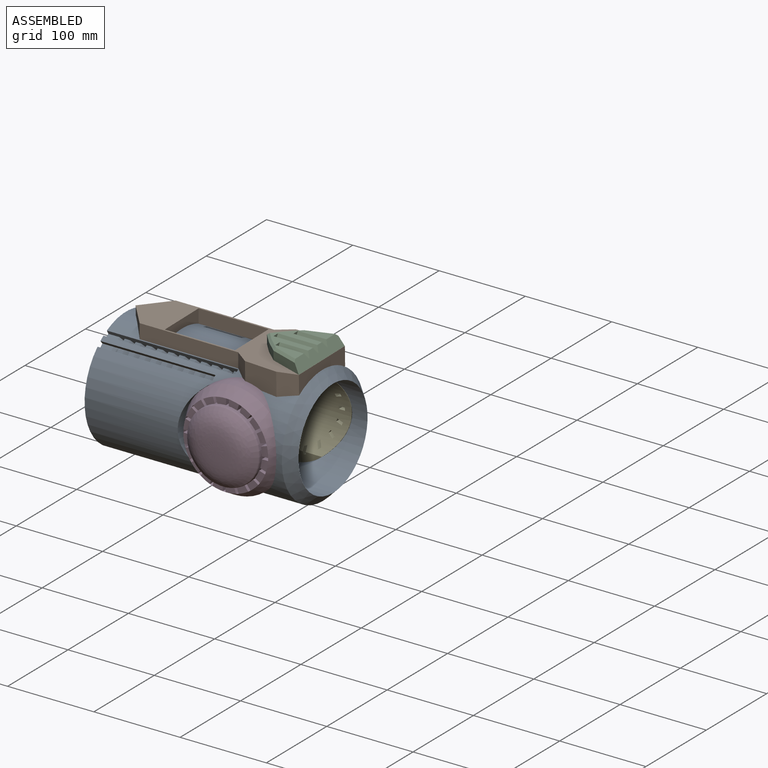
[diagram: assembled view]
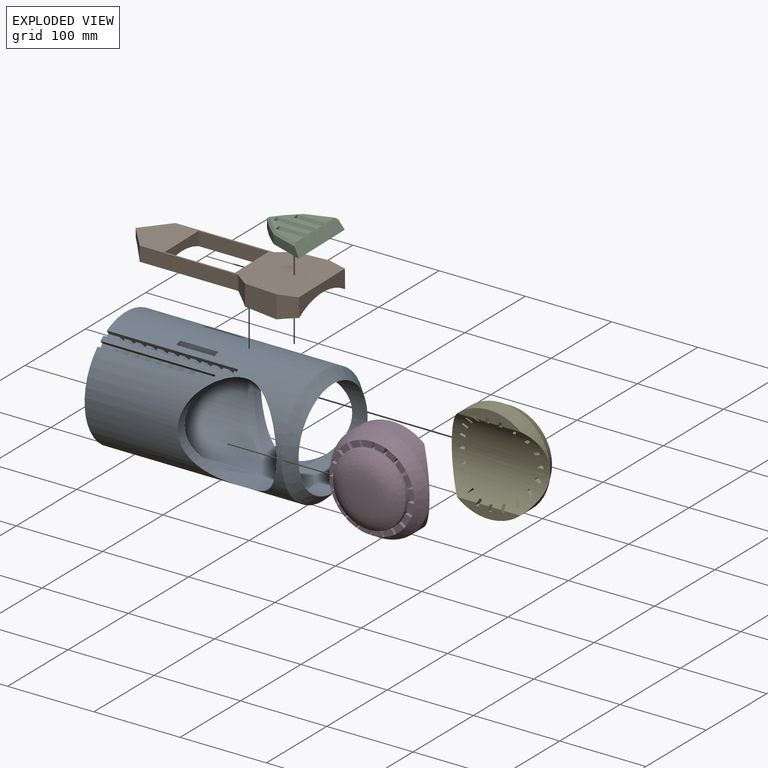
[diagram: exploded view]
GUIDED TOUR — MATED ASSEMBLY (Onshape document 820ff9f34ef822ad27cfb1ab, AutoMate assembly 820ff9f34ef822ad27cfb1ab_28095be229527e24cbf6e456_fba93439d21030f78f84b87d_default)

This assembly has 5 components, labeled P0..P4 below (a component is one placed occurrence of a part; the same part can appear more than once), held together by 4 mates. A mate is a constraint between two components; its type names the relative motion it leaves free:
  CYLINDRICAL — leaves both rotation about and translation along the listed axis free,
  PARALLEL — keeps the two listed directions parallel.
Axis/direction vectors are unit vectors and 'through' points are millimeter coordinates, both in the assembly's world frame.

MATES
  1. CYLINDRICAL "Cylindrical 1": P1 <-> P0, axis (1.000, 0.000, 0.000) through (3.45, 4.41, -8.81) mm
  2. PARALLEL "Parallel 1": P2 <-> P1, direction (0.000, 0.015, -1.000) through (87.88, 3.04, 70.06) mm
  3. CYLINDRICAL "Cylindrical 2": P3 <-> P0, axis (1.000, 0.000, 0.000) through (107.47, 4.41, -8.81) mm
  4. CYLINDRICAL "Cylindrical 3": P4 <-> P0, axis (1.000, 0.000, 0.000) through (48.79, 4.41, -8.81) mm

ASSEMBLY ORDER
  1. P0 — the base component [order heuristic]
  2. P3 — core [order heuristic]
  3. P4 — core [order heuristic]
  4. P1 [order verified]
  5. P2 [order verified]
(P1 verified with a relaxed clearance tolerance: the source model stores slight part interference there.)
Order-tag legend:
  [order verified] — this step's position reverses a verified removal order: the component was checked to insert without passing through the ones already placed.
  [order heuristic] — the first 3 components form the assembly's core: parts whose collision-free extraction could not be verified, listed in mate-graph order.

Of the 5 components, 2 carry the full construction recipe — the FeatureScript program that regenerates the part's solid from scratch; the rest are supplied as boundary geometry only.
Each toured component is shown spotlighted twice — in the assembled view, then in the exploded view, where a leader line traces a displaced component back to its assembled socket (saturated green if recipe-attached, orange if geometry-only; every other component desaturated gray) — followed by its recipe or geometry summary and the mates that hold it.
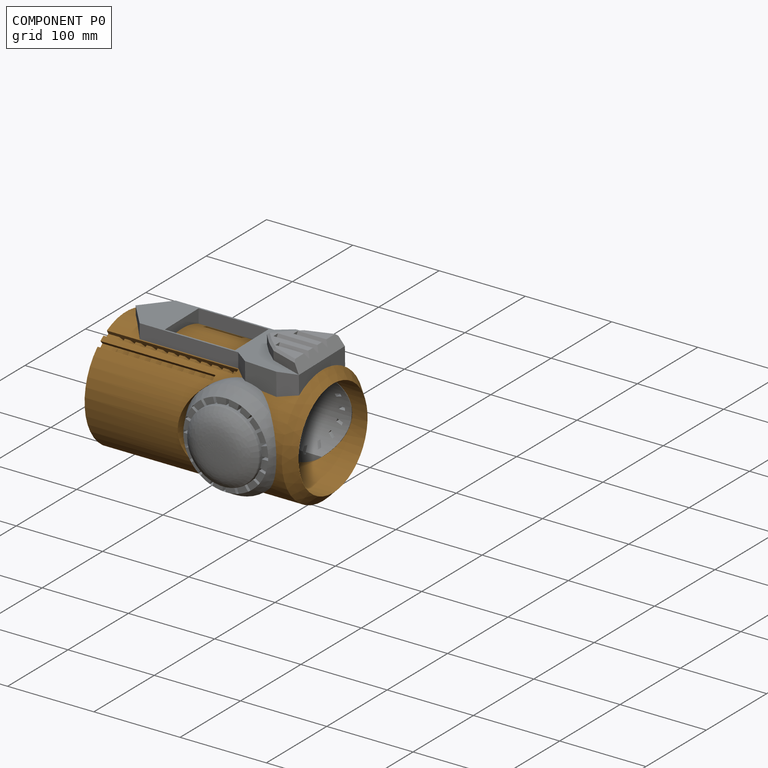
[diagram: component P0 — assembled]
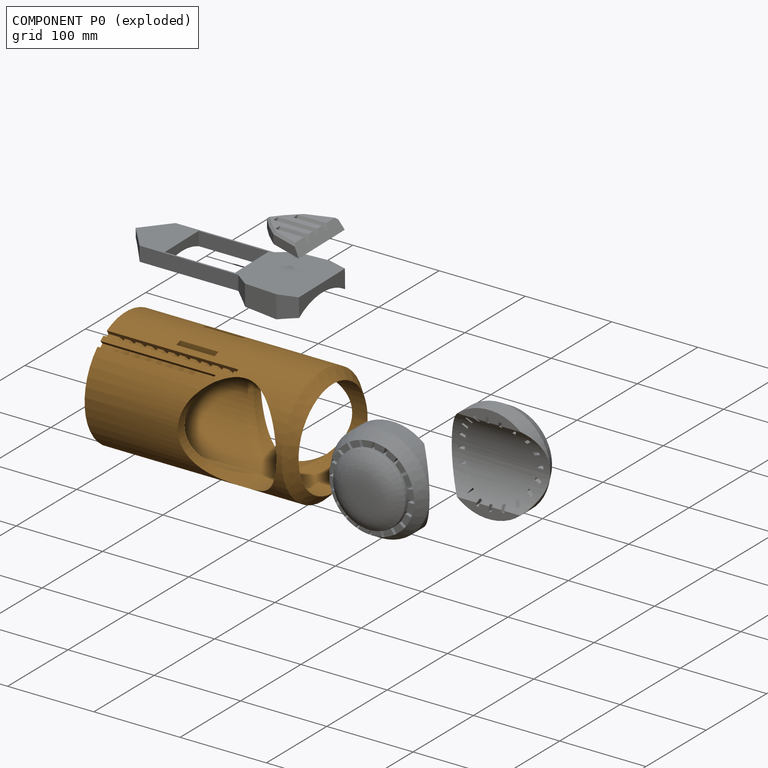
[diagram: component P0 — exploded]
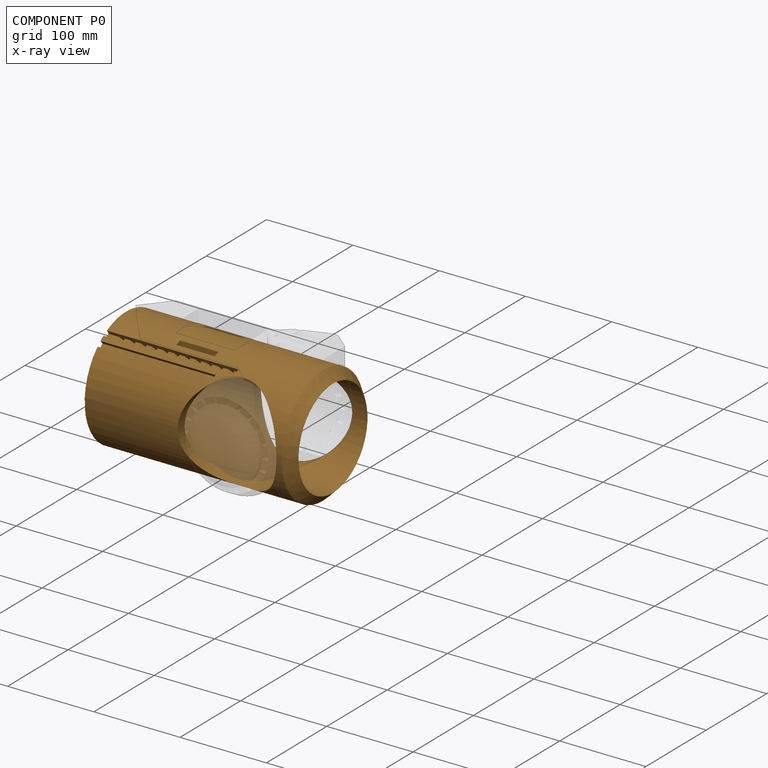
[diagram: component P0 — x-ray view]
COMPONENT P0 — geometry summary (no construction recipe available for this part):
  bounding box: 240.1 x 137.2 x 137.2 mm
  B-rep topology: 1 solid, 139 faces, 1058 edges
  volume: 742897 mm^3 (16% of its bounding box)
  symmetry: mirror-symmetric across its y mid-plane
Held by: CYLINDRICAL mate "Cylindrical 1" to P1; CYLINDRICAL mate "Cylindrical 2" to P3; CYLINDRICAL mate "Cylindrical 3" to P4.
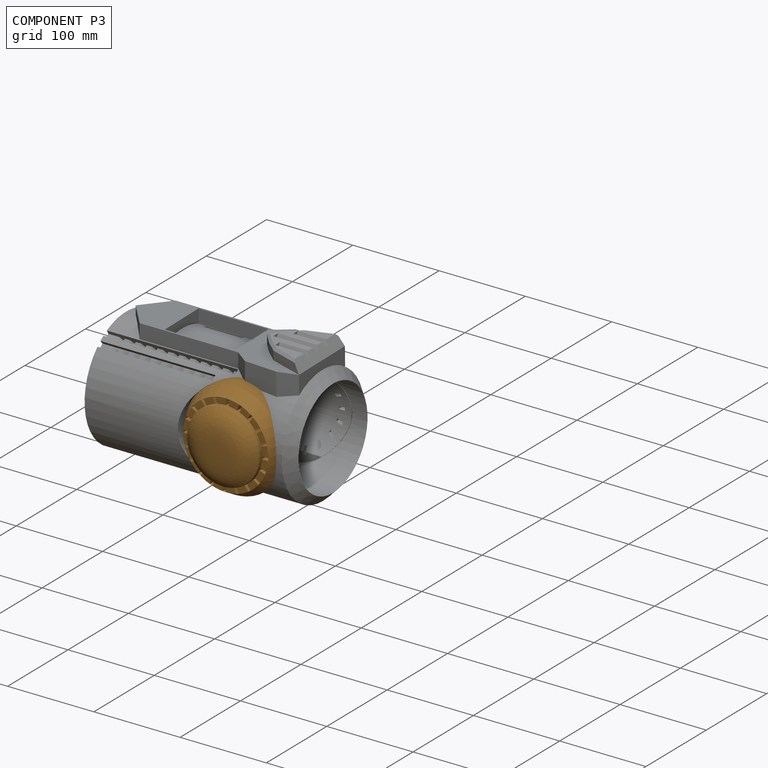
[diagram: component P3 — assembled]
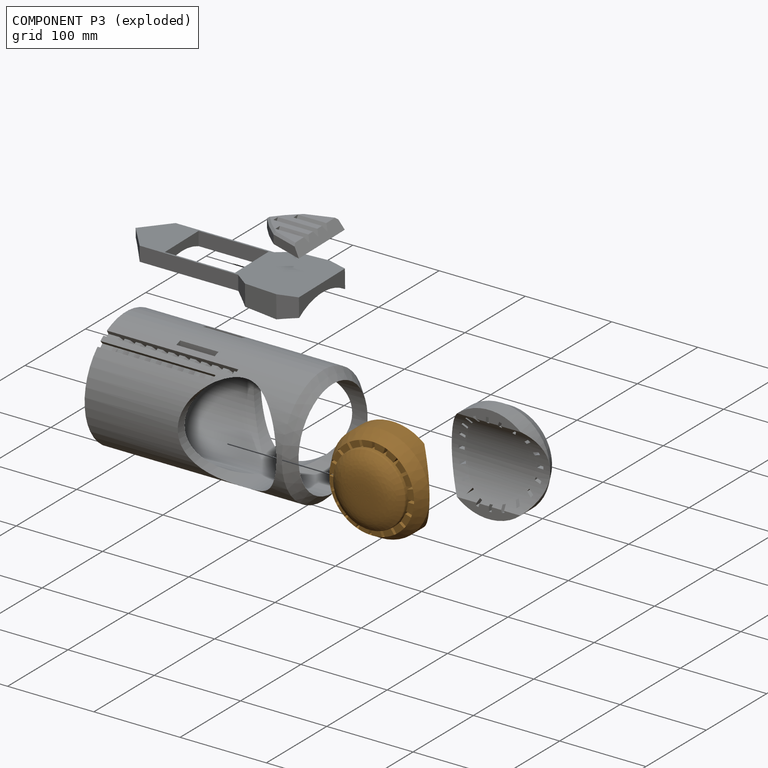
[diagram: component P3 — exploded]
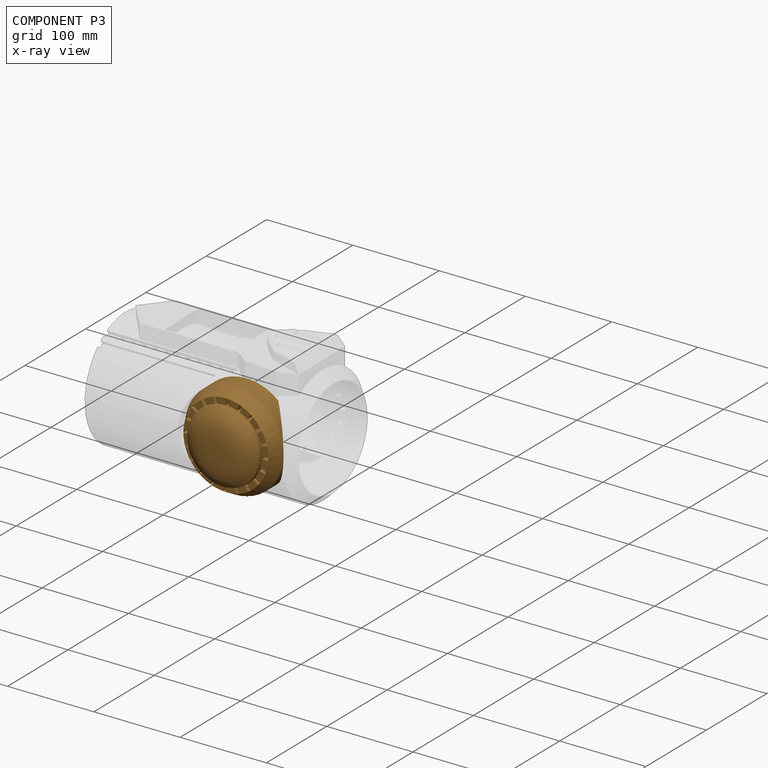
[diagram: component P3 — x-ray view]
COMPONENT P3 — geometry summary (no construction recipe available for this part):
  bounding box: 114.3 x 114.3 x 51.3 mm
  B-rep topology: 1 solid, 89 faces, 595 edges
  volume: 259252 mm^3 (39% of its bounding box)
  symmetry: 2-fold rotationally symmetric about the y axis
Held by: CYLINDRICAL mate "Cylindrical 2" to P0.
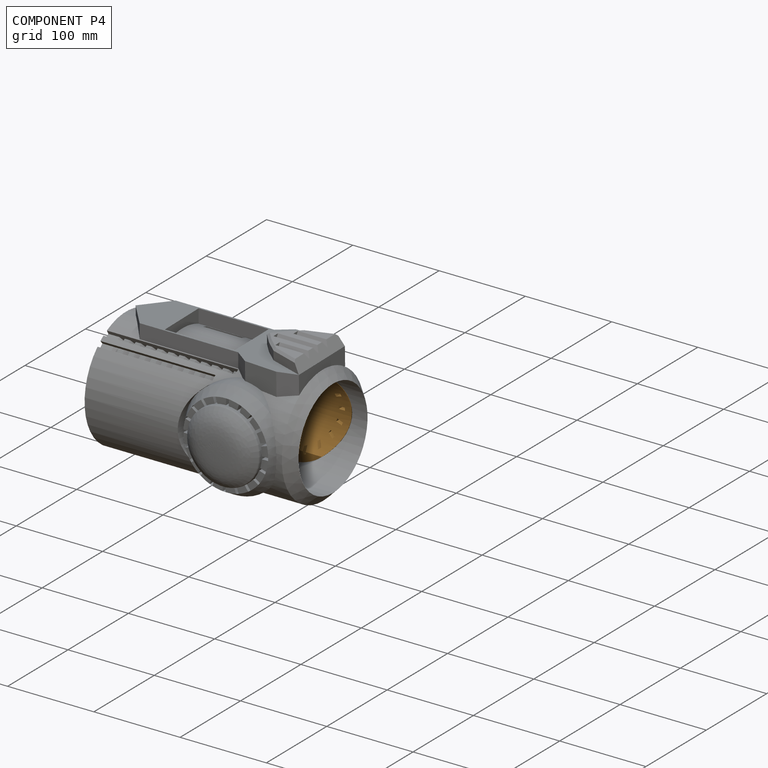
[diagram: component P4 — assembled]
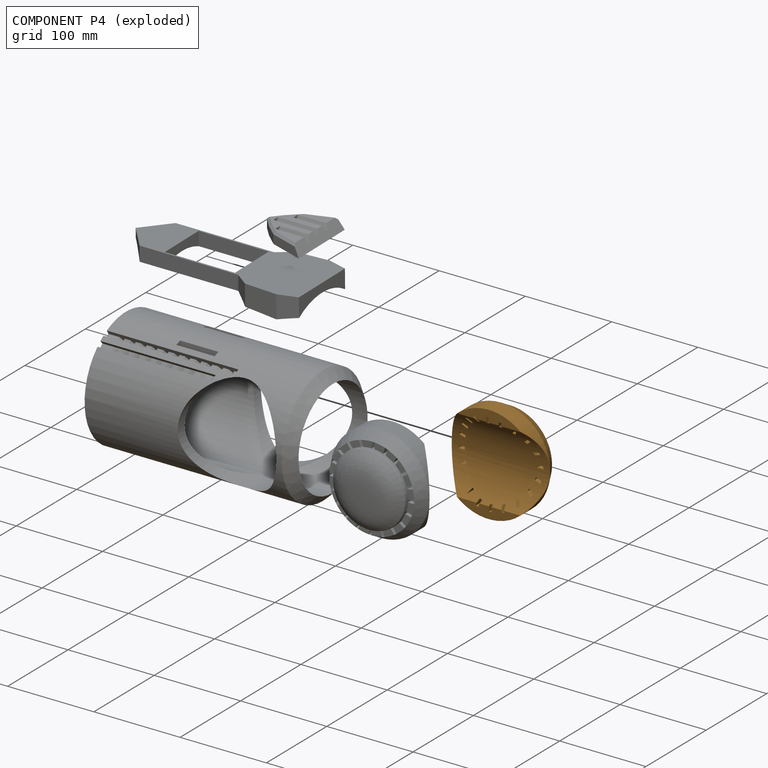
[diagram: component P4 — exploded]
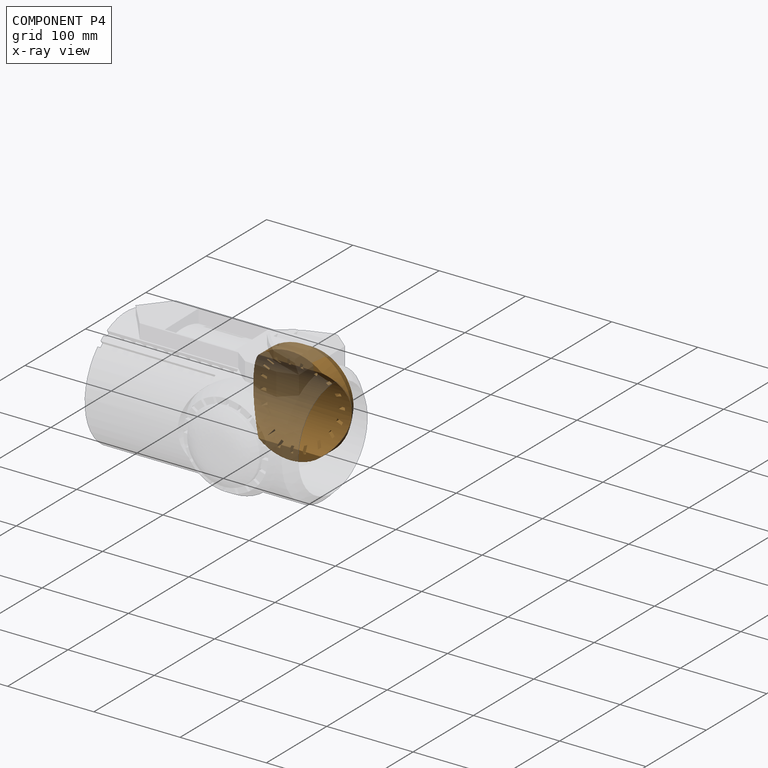
[diagram: component P4 — x-ray view]
COMPONENT P4 — geometry summary (no construction recipe available for this part):
  bounding box: 114.3 x 114.3 x 51.3 mm
  B-rep topology: 1 solid, 89 faces, 595 edges
  volume: 259252 mm^3 (39% of its bounding box)
  symmetry: 2-fold rotationally symmetric about the y axis
Held by: CYLINDRICAL mate "Cylindrical 3" to P0.
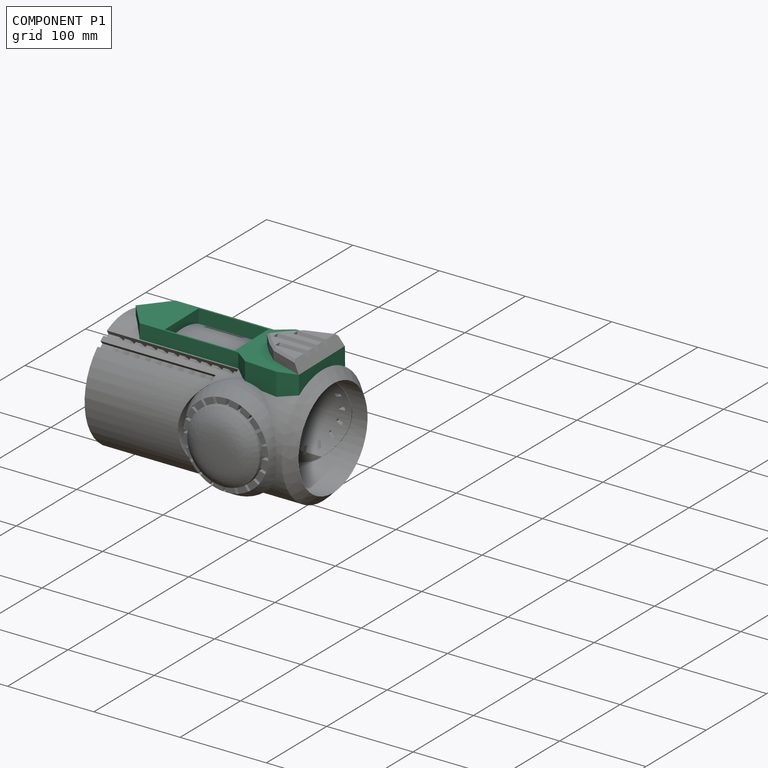
[diagram: component P1 — assembled]
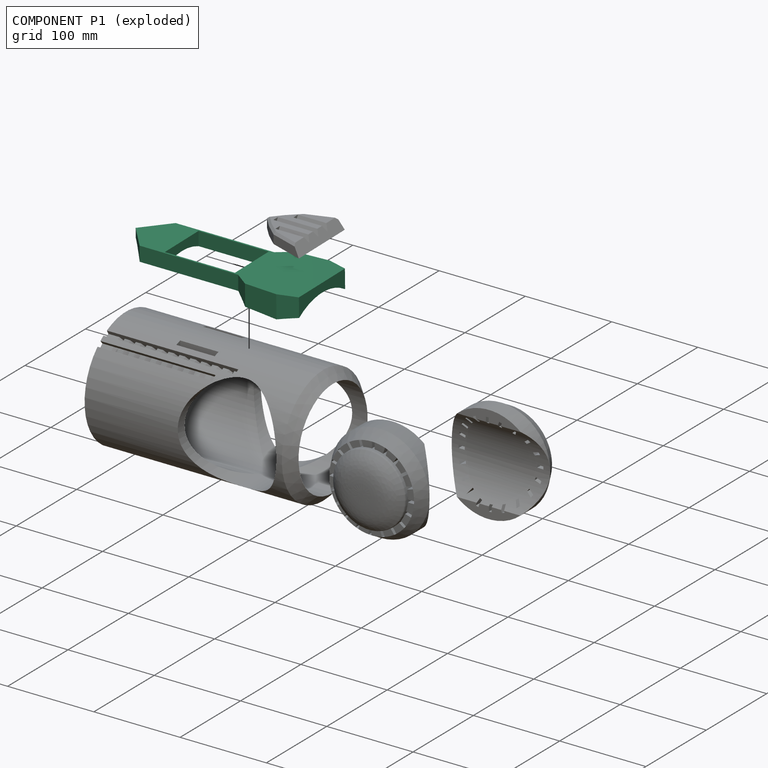
[diagram: component P1 — exploded]
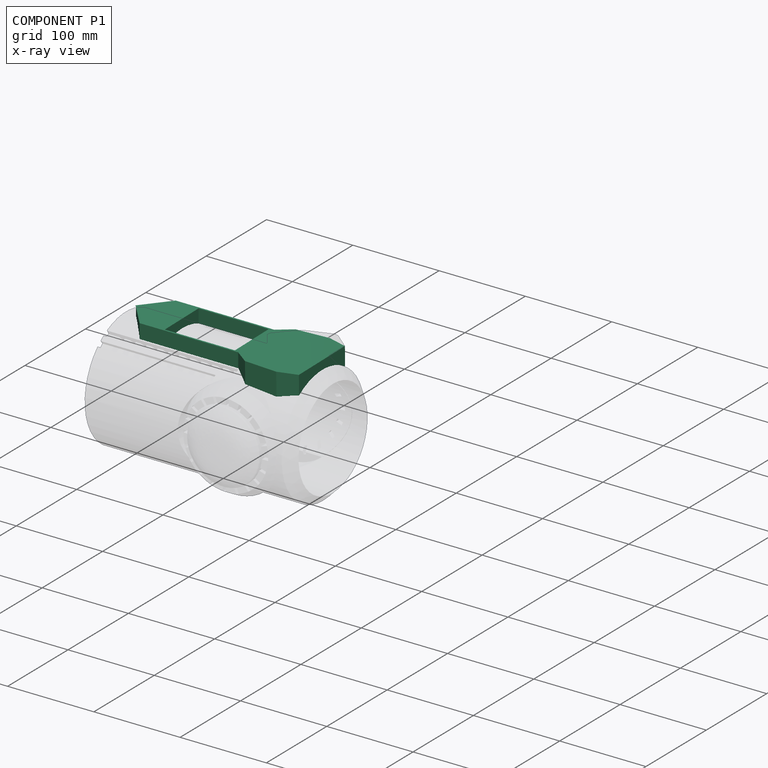
[diagram: component P1 — x-ray view]
COMPONENT P1 — recipe-attached (CADFS 00790599, mesh-verified: the recipe's output STEP matches this component's geometry to below the mesh-comparison resolution (tessellation chordal tolerance ~0.352 mm)).
Held by: CYLINDRICAL mate "Cylindrical 1" to P0; PARALLEL mate "Parallel 1" to P2.
Construction recipe (FeatureScript — the CAD program that rebuilds this solid; sketch coordinates are in the units given by the * unit suffixes, e.g. mm):

FeatureScript 1511;
import(path : "onshape/std/geometry.fs", version : "1511.0");
import(path : "onshape/std/common.fs", version : "1511.0");
const mm = millimeter;
const VERTEX = EntityType.VERTEX;
const EDGE = EntityType.EDGE;
const FACE = EntityType.FACE;
const BODY = EntityType.BODY;
function v(x, y){return vector(x, y);}
function OD(order){return orderDisambiguation(order);}
function OSD(set){return originalSetDisambiguation(set);}
function TD(topology){return topologyDisambiguation(topology);}
function TDD(query){return trueDependencyDisambiguation(query);}
function sQuery(a, b, c) {return sketchEntityQuery(a, b, c);}

annotation { "Feature Type Name" : "Feature", "Feature Type Description" : "" }
export const myFeature = defineFeature(function(context is Context, id is Id, definition is map)
    precondition{}
    {
        {
            var Q0;
            Q0=qCreatedBy(makeId("Top.planeOp"),FACE);
            var sketch = newSketch(context, id + "F0", { "sketchPlane" : qUnion([Q0])});
            skLineSegment(sketch, "E0", {"start": v(0, 38.1) * mm, "end": v(0, -38.1) * mm});
            skLineSegment(sketch, "E1", {"start": v(0, -38.1) * mm, "end": v(-21.83, -44.45) * mm});
            skLineSegment(sketch, "E2", {"start": v(-21.83, -44.45) * mm, "end": v(-59.85, -41.91) * mm});
            skLineSegment(sketch, "E3", {"start": v(-59.85, -41.91) * mm, "end": v(-76.2, -29.84) * mm});
            skLineSegment(sketch, "E4", {"start": v(-76.2, -29.85) * mm, "end": v(-190.5, -29.85) * mm});
            skLineSegment(sketch, "E5", {"start": v(-190.5, -29.85) * mm, "end": v(-215.9, 0) * mm});
            skLineSegment(sketch, "E6", {"start": v(-215.9, 0) * mm, "end": v(-190.5, 29.84) * mm});
            skLineSegment(sketch, "E7", {"start": v(-190.5, 29.85) * mm, "end": v(-76.2, 29.85) * mm});
            skLineSegment(sketch, "E8", {"start": v(-76.2, 29.84) * mm, "end": v(-59.85, 41.9) * mm});
            skLineSegment(sketch, "E9", {"start": v(-59.85, 41.91) * mm, "end": v(-21.83, 44.45) * mm});
            skLineSegment(sketch, "E10", {"start": v(-21.83, 44.45) * mm, "end": v(0, 38.1) * mm});
            skLineSegment(sketch, "E11", {"start": v(0, 0) * mm, "end": v(-76.2, 0) * mm});
            skLineSegment(sketch, "E12", {"start": v(-76.2, 29.85) * mm, "end": v(-76.2, -29.85) * mm});
            skSolve(sketch);
        }
        {
            var Q0;
            Q0 = qSketchRegion(id + "F0", true);
            extrude(context, id + "F1", {"entities" : qUnion([Q0]), "depth" : 78.74 * mm, "offsetDistance" : 25.4 * mm});
        }
        {
            var Q0;
            Q0=makeQuery(id+"F1.opExtrude","SWEPT_FACE",FACE,{"disambiguationData":[OSD([sQuery(id+"F0.wireOp",EDGE,"E0")])]});
            var sketch = newSketch(context, id + "F2", { "sketchPlane" : qUnion([Q0])});
            skCircle(sketch, "E13", {"center": v(0, 0) * mm, "radius": 68.58 * mm});
            skSolve(sketch);
        }
        {
            var Q0;
            Q0 = qSketchRegion(id + "F2", true);
            extrude(context, id + "F3", {"entities" : qUnion([Q0]), "operationType" : NewBodyOperationType.REMOVE, "oppositeDirection" : true, "depth" : 228.6 * mm, "offsetDistance" : 25.4 * mm});
        }
        {
            var Q0;
            Q0=makeQuery(id+"F1.opExtrude","CAP_FACE",FACE,{"disambiguationData":[OSD([sQuery(id+"F0.wireOp",EDGE,"E0"),sQuery(id+"F0.wireOp",EDGE,"E1"),sQuery(id+"F0.wireOp",EDGE,"E2"),sQuery(id+"F0.wireOp",EDGE,"E3"),sQuery(id+"F0.wireOp",EDGE,"E4"),sQuery(id+"F0.wireOp",EDGE,"E5"),sQuery(id+"F0.wireOp",EDGE,"E6"),sQuery(id+"F0.wireOp",EDGE,"E7"),sQuery(id+"F0.wireOp",EDGE,"E8"),sQuery(id+"F0.wireOp",EDGE,"E9"),sQuery(id+"F0.wireOp",EDGE,"E10")])],"isStart":false});
            var sketch = newSketch(context, id + "F4", { "sketchPlane" : qUnion([Q0])});
            skLineSegment(sketch, "E14.bottom", {"start": v(-162.56, 27.94) * mm, "end": v(-81.28, 27.94) * mm});
            skLineSegment(sketch, "E14.top", {"start": v(-162.56, -27.94) * mm, "end": v(-81.28, -27.94) * mm});
            skLineSegment(sketch, "E14.left", {"start": v(-162.56, 27.94) * mm, "end": v(-162.56, -27.94) * mm});
            skLineSegment(sketch, "E14.right", {"start": v(-81.28, 27.94) * mm, "end": v(-81.28, -27.94) * mm});
            skSolve(sketch);
        }
        {
            var Q0;
            Q0=makeQuery(id+"F4.imprint","IMPRINT",FACE,{"disambiguationData":[TD([[makeQuery(id+"F4.imprint","IMPRINT",EDGE,{"derivedFrom":sQuery(id+"F4.wireOp",EDGE,"E14.bottom")}),-1.0]])]});
            extrude(context, id + "F5", {"entities" : qUnion([Q0]), "operationType" : NewBodyOperationType.REMOVE, "oppositeDirection" : true, "depth" : 25.4 * mm, "offsetDistance" : 25.4 * mm});
        }
    });
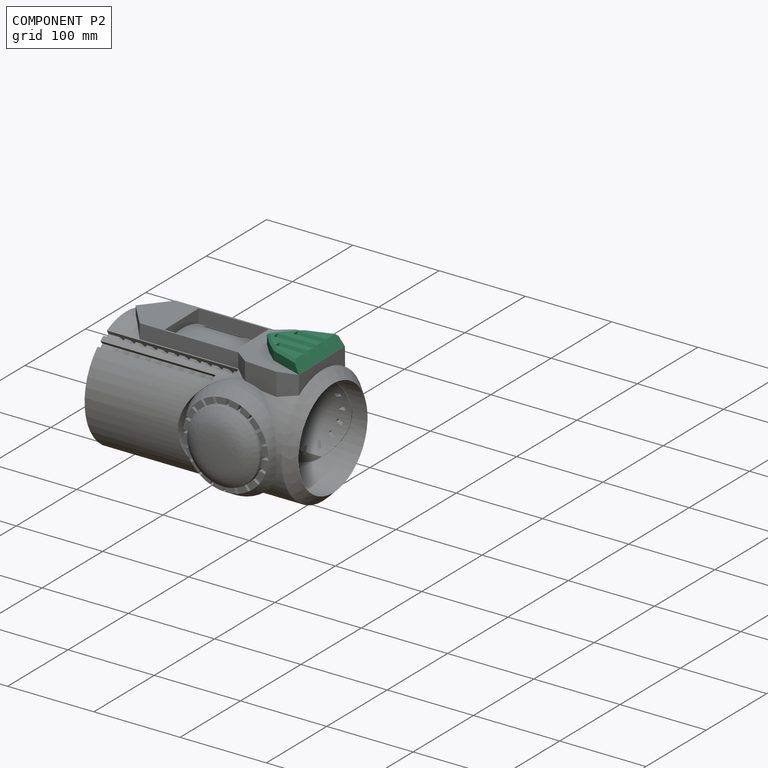
[diagram: component P2 — assembled]
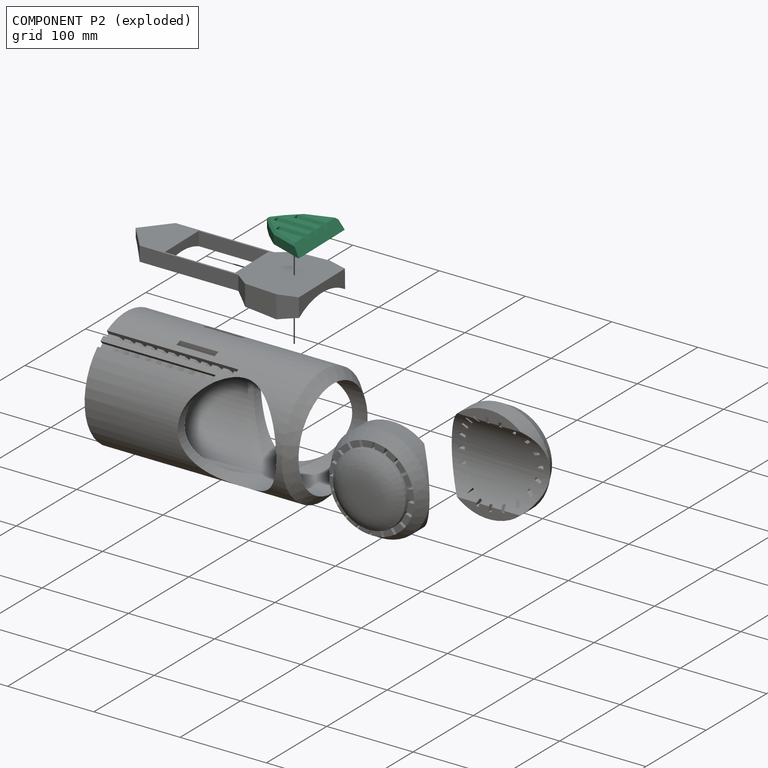
[diagram: component P2 — exploded]
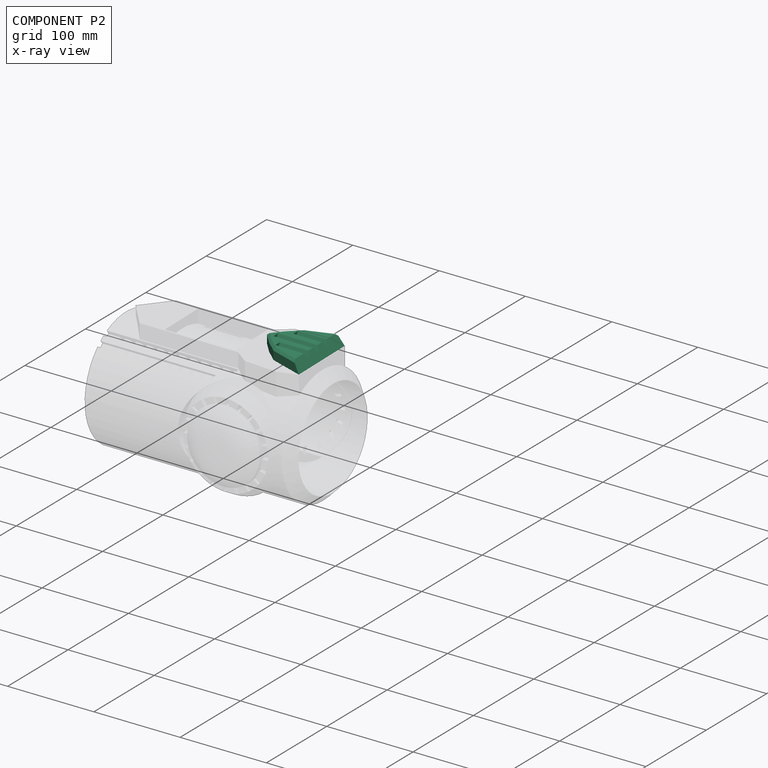
[diagram: component P2 — x-ray view]
COMPONENT P2 — recipe-attached (CADFS 00790600, mesh-verified: the recipe's output STEP matches this component's geometry to below the mesh-comparison resolution (tessellation chordal tolerance ~0.15 mm)).
Held by: PARALLEL mate "Parallel 1" to P1.
Construction recipe (FeatureScript — the CAD program that rebuilds this solid; sketch coordinates are in the units given by the * unit suffixes, e.g. mm):

FeatureScript 1511;
import(path : "onshape/std/geometry.fs", version : "1511.0");
import(path : "onshape/std/common.fs", version : "1511.0");
const mm = millimeter;
const VERTEX = EntityType.VERTEX;
const EDGE = EntityType.EDGE;
const FACE = EntityType.FACE;
const BODY = EntityType.BODY;
function v(x, y){return vector(x, y);}
function OD(order){return orderDisambiguation(order);}
function OSD(set){return originalSetDisambiguation(set);}
function TD(topology){return topologyDisambiguation(topology);}
function TDD(query){return trueDependencyDisambiguation(query);}
function sQuery(a, b, c) {return sketchEntityQuery(a, b, c);}

annotation { "Feature Type Name" : "Feature", "Feature Type Description" : "" }
export const myFeature = defineFeature(function(context is Context, id is Id, definition is map)
    precondition{}
    {
        {
            var Q0;
            Q0=qCreatedBy(makeId("Top.planeOp"),FACE);
            var sketch = newSketch(context, id + "F0", { "sketchPlane" : qUnion([Q0])});
            skLineSegment(sketch, "E0", {"start": v(0, 38.1) * mm, "end": v(-38.1, 25.4) * mm});
            skLineSegment(sketch, "E1", {"start": v(-38.1, 25.4) * mm, "end": v(-52.27, 12.7) * mm});
            skLineSegment(sketch, "E2", {"start": v(-52.27, 12.7) * mm, "end": v(-63.5, 0) * mm});
            skLineSegment(sketch, "E3", {"start": v(-63.5, 0) * mm, "end": v(-52.27, -12.7) * mm});
            skLineSegment(sketch, "E4", {"start": v(-52.27, -12.7) * mm, "end": v(-38.1, -25.4) * mm});
            skLineSegment(sketch, "E5", {"start": v(-38.1, -25.4) * mm, "end": v(0, -38.1) * mm});
            skLineSegment(sketch, "E6", {"start": v(0, -38.1) * mm, "end": v(0, 38.1) * mm});
            skSolve(sketch);
        }
        {
            var Q0;
            Q0=makeQuery(id+"F0.imprint","IMPRINT",FACE,{"disambiguationData":[TD([[makeQuery(id+"F0.imprint","IMPRINT",EDGE,{"derivedFrom":sQuery(id+"F0.wireOp",EDGE,"E0")}),1.0]])]});
            extrude(context, id + "F1", {"entities" : qUnion([Q0]), "depth" : 12.7 * mm, "offsetDistance" : 25.4 * mm});
        }
        {
            var Q0;
            Q0=makeQuery(id+"F1.opExtrude","SWEPT_FACE",FACE,{"disambiguationData":[OSD([sQuery(id+"F0.wireOp",EDGE,"E6")])]});
            var sketch = newSketch(context, id + "F2", { "sketchPlane" : qUnion([Q0])});
            skLineSegment(sketch, "E7", {"start": v(-3.67, 12.7) * mm, "end": v(0, 6.35) * mm});
            skLineSegment(sketch, "E8", {"start": v(0, 6.35) * mm, "end": v(3.67, 12.7) * mm});
            skLineSegment(sketch, "E9", {"start": v(3.67, 12.7) * mm, "end": v(-3.67, 12.7) * mm});
            skLineSegment(sketch, "E10", {"start": v(11.29, 12.7) * mm, "end": v(14.95, 6.35) * mm});
            skLineSegment(sketch, "E11", {"start": v(14.95, 6.35) * mm, "end": v(18.62, 12.7) * mm});
            skLineSegment(sketch, "E12", {"start": v(18.62, 12.7) * mm, "end": v(11.29, 12.7) * mm});
            skLineSegment(sketch, "E13", {"start": v(-11.29, 12.7) * mm, "end": v(-18.62, 12.7) * mm});
            skLineSegment(sketch, "E14", {"start": v(-18.62, 12.7) * mm, "end": v(-14.95, 6.35) * mm});
            skLineSegment(sketch, "E15", {"start": v(-14.95, 6.35) * mm, "end": v(-11.29, 12.7) * mm});
            skSolve(sketch);
        }
        {
            var Q0;
            Q0=makeQuery(id+"F2.imprint","IMPRINT",FACE,{"disambiguationData":[TD([[makeQuery(id+"F2.imprint","IMPRINT",EDGE,{"derivedFrom":sQuery(id+"F2.wireOp",EDGE,"E13")}),-1.0]])]});
            var Q1;
            Q1=makeQuery(id+"F2.imprint","IMPRINT",FACE,{"disambiguationData":[TD([[makeQuery(id+"F2.imprint","IMPRINT",EDGE,{"derivedFrom":sQuery(id+"F2.wireOp",EDGE,"E10")}),1.0]])]});
            extrude(context, id + "F3", {"entities" : qUnion([Q0, Q1]), "operationType" : NewBodyOperationType.REMOVE, "oppositeDirection" : true, "depth" : 40.64 * mm, "offsetDistance" : 25.4 * mm});
        }
        {
            var Q0;
            Q0=makeQuery(id+"F2.imprint","IMPRINT",FACE,{"disambiguationData":[TD([[makeQuery(id+"F2.imprint","IMPRINT",EDGE,{"derivedFrom":sQuery(id+"F2.wireOp",EDGE,"E7")}),1.0]])]});
            extrude(context, id + "F4", {"entities" : qUnion([Q0]), "operationType" : NewBodyOperationType.REMOVE, "oppositeDirection" : true, "depth" : 53.34 * mm, "offsetDistance" : 25.4 * mm});
        }
        {
            var Q0;
            {var subQ0=sQuery(id+"F0.wireOp",EDGE,"E6");var subQ1=sQuery(id+"F0.wireOp",EDGE,"E5");Q0=makeQuery(id+"F3.boolean.opBoolean","SPLIT",EDGE,{"disambiguationData":[TD([makeQuery(id+"F1.opExtrude","SWEPT_FACE",FACE,{"disambiguationData":[OSD([subQ1])]})])],"derivedFrom":makeQuery(id+"F1.opExtrude","CAP_EDGE",EDGE,{"disambiguationData":[OSD([subQ0])],"isStart":false})});}
            var Q1;
            {var subQ0=sQuery(id+"F0.wireOp",EDGE,"E6");var subQ3=makeQuery(id+"F3.opExtrude","SWEPT_FACE",FACE,{"disambiguationData":[OSD([sQuery(id+"F2.wireOp",EDGE,"E15")])]});Q1=makeQuery(id+"F4.boolean.opBoolean","SPLIT",EDGE,{"disambiguationData":[TD([makeQuery(id+"F3.boolean.opBoolean","COPY",FACE,{"derivedFrom":subQ3})])],"derivedFrom":makeQuery(id+"F3.boolean.opBoolean","SPLIT",EDGE,{"disambiguationData":[TD([makeQuery(id+"F3.opExtrude","SWEPT_FACE",FACE,{"disambiguationData":[OSD([sQuery(id+"F2.wireOp",EDGE,"E10")])]})])],"derivedFrom":makeQuery(id+"F1.opExtrude","CAP_EDGE",EDGE,{"disambiguationData":[OSD([subQ0])],"isStart":false})})});}
            var Q2;
            {var subQ0=sQuery(id+"F0.wireOp",EDGE,"E6");var subQ3=makeQuery(id+"F3.opExtrude","SWEPT_FACE",FACE,{"disambiguationData":[OSD([sQuery(id+"F2.wireOp",EDGE,"E10")])]});Q2=makeQuery(id+"F4.boolean.opBoolean","SPLIT",EDGE,{"disambiguationData":[TD([makeQuery(id+"F3.boolean.opBoolean","COPY",FACE,{"derivedFrom":subQ3})])],"derivedFrom":makeQuery(id+"F3.boolean.opBoolean","SPLIT",EDGE,{"disambiguationData":[TD([subQ3])],"derivedFrom":makeQuery(id+"F1.opExtrude","CAP_EDGE",EDGE,{"disambiguationData":[OSD([subQ0])],"isStart":false})})});}
            var Q3;
            {var subQ0=sQuery(id+"F0.wireOp",EDGE,"E0");var subQ1=sQuery(id+"F0.wireOp",EDGE,"E6");Q3=makeQuery(id+"F3.boolean.opBoolean","SPLIT",EDGE,{"disambiguationData":[TD([makeQuery(id+"F1.opExtrude","SWEPT_FACE",FACE,{"disambiguationData":[OSD([subQ0])]})])],"derivedFrom":makeQuery(id+"F1.opExtrude","CAP_EDGE",EDGE,{"disambiguationData":[OSD([subQ1])],"isStart":false})});}
            chamfer(context, id + "F5", {"entities" : qUnion([Q0, Q1, Q2, Q3]), "chamferType" : ChamferType.TWO_OFFSETS, "width1" : 7.62 * mm, "oppositeDirection" : false, "width2" : 12.7 * mm, "tangentPropagation" : true});
        }
        {
            var Q0;
            Q0=makeQuery(id+"F1.opExtrude","CAP_EDGE",EDGE,{"disambiguationData":[OSD([sQuery(id+"F0.wireOp",EDGE,"E5")])],"isStart":false});
            var Q1;
            Q1=makeQuery(id+"F1.opExtrude","CAP_EDGE",EDGE,{"disambiguationData":[OSD([sQuery(id+"F0.wireOp",EDGE,"E4")])],"isStart":false});
            var Q2;
            Q2=makeQuery(id+"F1.opExtrude","CAP_EDGE",EDGE,{"disambiguationData":[OSD([sQuery(id+"F0.wireOp",EDGE,"E3")])],"isStart":false});
            var Q3;
            Q3=makeQuery(id+"F1.opExtrude","CAP_EDGE",EDGE,{"disambiguationData":[OSD([sQuery(id+"F0.wireOp",EDGE,"E2")])],"isStart":false});
            var Q4;
            Q4=makeQuery(id+"F1.opExtrude","CAP_EDGE",EDGE,{"disambiguationData":[OSD([sQuery(id+"F0.wireOp",EDGE,"E1")])],"isStart":false});
            var Q5;
            Q5=makeQuery(id+"F1.opExtrude","CAP_EDGE",EDGE,{"disambiguationData":[OSD([sQuery(id+"F0.wireOp",EDGE,"E0")])],"isStart":false});
            chamfer(context, id + "F6", {"entities" : qUnion([Q0, Q1, Q2, Q3, Q4, Q5]), "width" : 2.54 * mm, "tangentPropagation" : true});
        }
    });
PROVENANCE & LICENSES
Assembly (occurrences, transforms, mates, per-part STEP geometry): AutoMate dataset, Zenodo record 7776208, CC0.
Construction recipes: CADFS (HuggingFace VladPyatov/CADFS, CC-BY-4.0, layered over the ABC dataset), FeatureScript reconstruction programs keyed by ABC model id.
Join: ABC meta listings map ABC model id -> Onshape documentId; within a shared document, parts are matched by geometric signature (bounding-box dims + volume at 0.1% relative tolerance, exact B-rep face/solid counts).
Verification: 2 of this assembly's 5 components carry a recipe attachment, and every attachment is mesh-verified: the CADFS STEP and the AutoMate member STEP were compared as meshes in their shared local frame (symmetric sampled-point-to-mesh distance); worst across the 2 attachments: below the mesh-comparison resolution (tessellation chordal tolerance ~0.352 mm) on a 235 mm part.
Renders: orthographic iso camera (az 35 / el 25); the floor grid conveys scale (grid pitch printed in each image; no ruler). In the exploded view each component is displaced by its stored offset vector: the offsets alone carry the explosion direction (mate normal/axis signs are not orientation cues and do not encode it), and separation distances are assigned per mate-chain, not proportionally to assembly-order depth.
